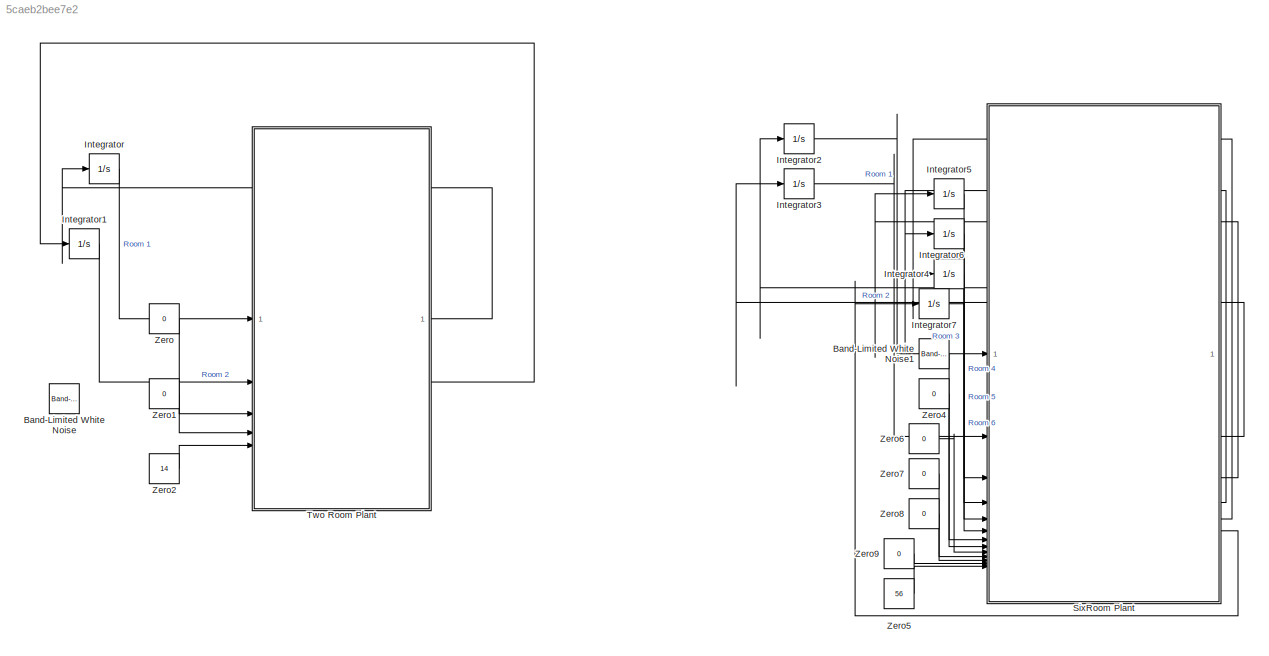
MODEL slx_5caeb2bee7e2
KIND model
CONFIG AbsTol = auto
CONFIG EnableMultiTasking = off
CONFIG FixedStep = auto
CONFIG MaxStep = auto
CONFIG MinStep = auto
CONFIG RelTol = 1e-3
CONFIG SampleTimeConstraint = Unconstrained
CONFIG SolverName = VariableStepAuto
CONFIG StartTime = 0.0
CONFIG StopTime = 36
BLOCK [Reference] Band-Limited White Noise  REF=simulink/Sources/Band-Limited
White Noise
  SourceBlock = simulink/Sources/Band-Limited\nWhite Noise
  SourceType = Band-Limited White Noise.
BLOCK [Reference] Band-Limited White Noise1  REF=simulink/Sources/Band-Limited
White Noise
  SourceBlock = simulink/Sources/Band-Limited\nWhite Noise
  SourceType = Band-Limited White Noise.
BLOCK [Integrator] Integrator
  Commented = on
BLOCK [Integrator] Integrator1
  Commented = on
BLOCK [Integrator] Integrator2
BLOCK [Integrator] Integrator3
BLOCK [Integrator] Integrator4
BLOCK [Integrator] Integrator5
BLOCK [Integrator] Integrator6
BLOCK [Integrator] Integrator7
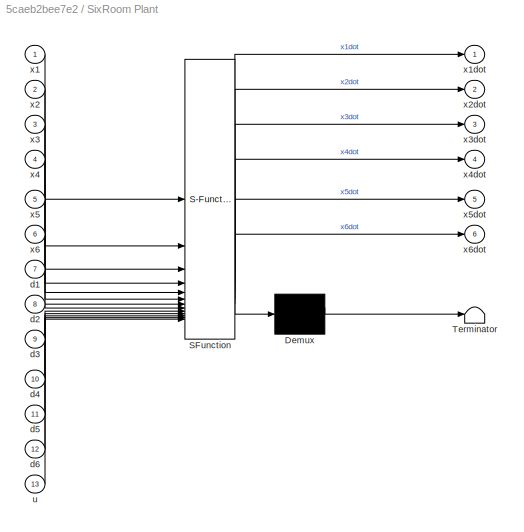
BLOCK [SubSystem] SixRoom Plant
  ErrorFcn = Stateflow.Translate.translate
  LibrarySourceBlock = simulink/User-Defined\nFunctions/MATLAB Function
  PermitHierarchicalResolution = ExplicitOnly
  SFBlockType = MATLAB Function
  TreatAsAtomicUnit = on
BLOCK [Demux] SixRoom Plant/ Demux 
  Outputs = 1
BLOCK [S-Function] SixRoom Plant/ SFunction 
  EnableBusSupport = on
  FunctionName = sf_sfun
  PortCounts = [13 7]
  SFcnIsStateOwnerBlock = off
  SFunctionDeploymentMode = off
  Tag = Stateflow S-Function 1
BLOCK [Terminator] SixRoom Plant/ Terminator 
BLOCK [Inport] SixRoom Plant/d1
  Port = 7
BLOCK [Inport] SixRoom Plant/d2
  Port = 8
BLOCK [Inport] SixRoom Plant/d3
  Port = 9
BLOCK [Inport] SixRoom Plant/d4
  Port = 10
BLOCK [Inport] SixRoom Plant/d5
  Port = 11
BLOCK [Inport] SixRoom Plant/d6
  Port = 12
BLOCK [Inport] SixRoom Plant/u
  Port = 13
BLOCK [Inport] SixRoom Plant/x1
BLOCK [Outport] SixRoom Plant/x1dot
BLOCK [Inport] SixRoom Plant/x2
  Port = 2
BLOCK [Outport] SixRoom Plant/x2dot
  Port = 2
BLOCK [Inport] SixRoom Plant/x3
  Port = 3
BLOCK [Outport] SixRoom Plant/x3dot
  Port = 3
BLOCK [Inport] SixRoom Plant/x4
  Port = 4
BLOCK [Outport] SixRoom Plant/x4dot
  Port = 4
BLOCK [Inport] SixRoom Plant/x5
  Port = 5
BLOCK [Outport] SixRoom Plant/x5dot
  Port = 5
BLOCK [Inport] SixRoom Plant/x6
  Port = 6
BLOCK [Outport] SixRoom Plant/x6dot
  Port = 6
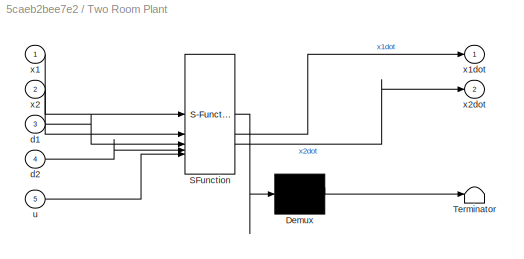
BLOCK [SubSystem] Two Room Plant
  Commented = on
  ErrorFcn = Stateflow.Translate.translate
  LibrarySourceBlock = simulink/User-Defined\nFunctions/MATLAB Function
  PermitHierarchicalResolution = ExplicitOnly
  SFBlockType = MATLAB Function
  TreatAsAtomicUnit = on
BLOCK [Demux] Two Room Plant/ Demux 
  Outputs = 1
BLOCK [S-Function] Two Room Plant/ SFunction 
  EnableBusSupport = on
  FunctionName = sf_sfun
  PortCounts = [5 3]
  SFcnIsStateOwnerBlock = off
  SFunctionDeploymentMode = off
  Tag = Stateflow S-Function 2
BLOCK [Terminator] Two Room Plant/ Terminator 
BLOCK [Inport] Two Room Plant/d1
  Port = 3
BLOCK [Inport] Two Room Plant/d2
  Port = 4
BLOCK [Inport] Two Room Plant/u
  Port = 5
BLOCK [Inport] Two Room Plant/x1
BLOCK [Outport] Two Room Plant/x1dot
BLOCK [Inport] Two Room Plant/x2
  Port = 2
BLOCK [Outport] Two Room Plant/x2dot
  Port = 2
BLOCK [Constant] Zero
  Commented = on
  OutDataTypeStr = Inherit: Inherit via back propagation
  Value = 0
BLOCK [Constant] Zero1
  Commented = on
  OutDataTypeStr = Inherit: Inherit via back propagation
  Value = 0
BLOCK [Constant] Zero2
  Commented = on
  OutDataTypeStr = Inherit: Inherit via back propagation
  Value = 14
BLOCK [Constant] Zero4
  OutDataTypeStr = Inherit: Inherit via back propagation
  Value = 0
BLOCK [Constant] Zero5
  OutDataTypeStr = Inherit: Inherit via back propagation
  Value = 56
BLOCK [Constant] Zero6
  OutDataTypeStr = Inherit: Inherit via back propagation
  Value = 0
BLOCK [Constant] Zero7
  OutDataTypeStr = Inherit: Inherit via back propagation
  Value = 0
BLOCK [Constant] Zero8
  OutDataTypeStr = Inherit: Inherit via back propagation
  Value = 0
BLOCK [Constant] Zero9
  OutDataTypeStr = Inherit: Inherit via back propagation
  Value = 0
LINE Band-Limited White Noise1:1 -> SixRoom Plant:7
LINE Integrator1:1 -> Two Room Plant:2
LINE Integrator2:1 -> SixRoom Plant:1
LINE Integrator3:1 -> SixRoom Plant:2
LINE Integrator4:1 -> SixRoom Plant:5
LINE Integrator5:1 -> SixRoom Plant:3
LINE Integrator6:1 -> SixRoom Plant:4
LINE Integrator7:1 -> SixRoom Plant:6
LINE Integrator:1 -> Two Room Plant:1
LINE SixRoom Plant:1 -> Integrator2:1
LINE SixRoom Plant:2 -> Integrator3:1
LINE SixRoom Plant:3 -> Integrator5:1
LINE SixRoom Plant:4 -> Integrator6:1
LINE SixRoom Plant:5 -> Integrator4:1
LINE SixRoom Plant:6 -> Integrator7:1
LINE Two Room Plant:1 -> Integrator:1
LINE Two Room Plant:2 -> Integrator1:1
LINE Zero1:1 -> Two Room Plant:4
LINE Zero2:1 -> Two Room Plant:5
LINE Zero4:1 -> SixRoom Plant:8
LINE Zero5:1 -> SixRoom Plant:13
LINE Zero6:1 -> SixRoom Plant:9
LINE Zero7:1 -> SixRoom Plant:10
LINE Zero8:1 -> SixRoom Plant:11
LINE Zero9:1 -> SixRoom Plant:12
LINE Zero:1 -> Two Room Plant:3
CHART SixRoom Plant states=1 transitions=1
  STATE_LABEL 'eML_blk_kernel()'
  STATE_LABEL 'SCRIPT:\nfunction [x1dot, x2dot, x3dot, x4dot, x5dot, x6dot] = ode(x1, x2, x3, x4, x5, x6, d1, d2,  d3,  d4, d5, d6, u)\n\n% Define Parameters\nm1 = 17; % Thermal capacitance of room 1\nm2 = 17; % Thermal capacitance of room 2\nm3 = 17; % Thermal capacitance of room 2\nm4 = 17; % Thermal capacitance of room 2\nm5 = 17; % Thermal capacitance of room 2\nm6 = 17; % Thermal capacitance of room 2\nw12 = 0.9; % T...<+2109ch>'
CHART Two Room Plant states=1 transitions=1
  STATE_LABEL 'eML_blk_kernel()'
  STATE_LABEL 'SCRIPT:\nfunction [x1dot, x2dot] = ode(x1, x2, d1, d2, u)\n\n%Define Parameters\nm1 = 17;\nm2 = 15;\nw12 = 0.9;\nw21 = 0.8;\nw1o = 0.5;\nw2o = 0.5;\nrho = 1.2;\ncp = 10;\ngamma1 = 0.8;\ngamma2 = 1.8;\nT0 = 30;\n\n\n% u=V is the control input\nx1dot = 1/m1*(w12*(x2-x1) - w1o*x1 + gamma1*rho*u*cp*(T0-x1)+d1);\nx2dot = 1/m2*(w21*(x1-x2) - w2o*x2 + gamma2*rho*u*cp*(T0-x2)+d2);'
CHART  states=0 transitions=0
CHART  states=0 transitions=0
